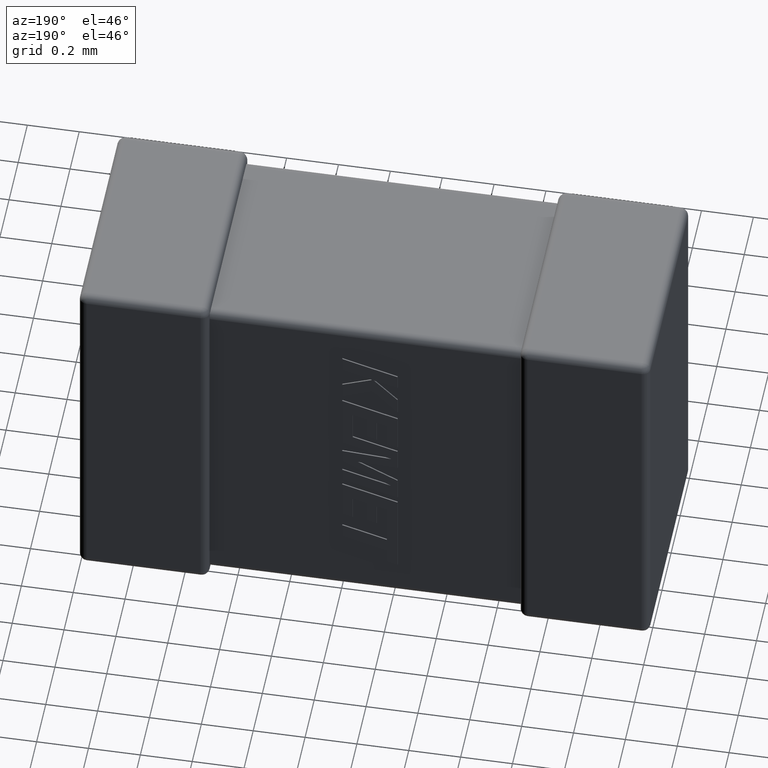
[diagram: clean part render]
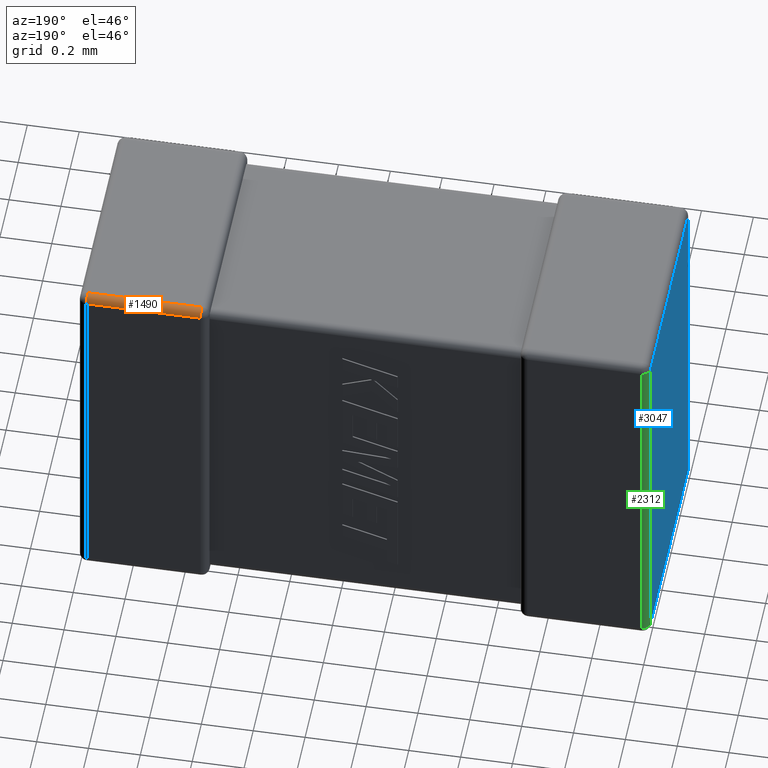
[diagram: same view with three faces highlighted in distinct colors, each labeled with its STEP entity id]
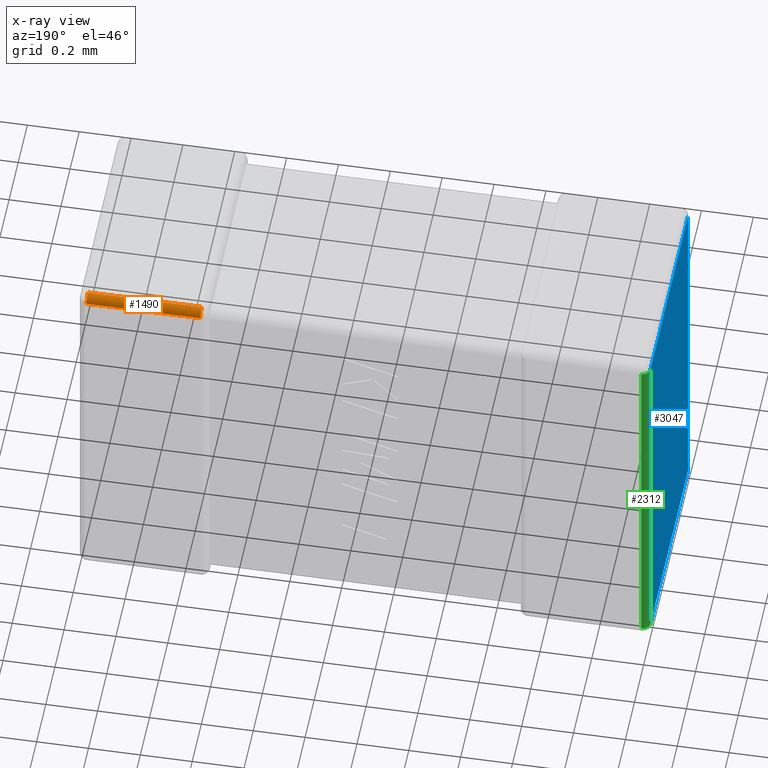
[diagram: x-ray of the same camera — body ghosted, the three highlighted faces saturated]
A machine part, auxiliary view with three faces highlighted in distinct colors.
The next image is the same camera in x-ray (body ghosted, the three faces saturated) — at least one of them is partly hidden behind the body in this view.
Their STEP definitions:

[orange] entity #1490 — the highlighted cylindrical surface (edge-blend (fillet) strip) has radius 0.0302 mm, axis along (-1, 0, 0).
#58 = VERTEX_POINT ( 'NONE', #3063 ) ;
#245 = DIRECTION ( 'NONE',  ( 1.000000000000000000, -0.000000000000000000, -0.000000000000000000 ) ) ;
#627 = CARTESIAN_POINT ( 'NONE',  ( 2.200000000000000178, 0.8498400000000000398, 0.000000000000000000 ) ) ;
#762 = ORIENTED_EDGE ( 'NONE', *, *, #4422, .T. ) ;
#837 = VECTOR ( 'NONE', #245, 1000.000000000000000 ) ;
#1108 = CARTESIAN_POINT ( 'NONE',  ( 2.169840000000000213, 0.8498400000000000398, 0.000000000000000000 ) ) ;
#1327 = CIRCLE ( 'NONE', #4110, 0.03015999999999999931 ) ;
#1490 = ADVANCED_FACE ( 'NONE', ( #2479 ), #2882, .T. ) ;
#1649 = LINE ( 'NONE', #2428, #837 ) ;
#1656 = CARTESIAN_POINT ( 'NONE',  ( 2.169840000000000213, 0.8800000000000000044, -0.03015999999999999931 ) ) ;
#1748 = CARTESIAN_POINT ( 'NONE',  ( 1.730160000000000142, 0.8498400000000000398, 0.000000000000000000 ) ) ;
#1812 = ORIENTED_EDGE ( 'NONE', *, *, #2234, .F. ) ;
#1948 = AXIS2_PLACEMENT_3D ( 'NONE', #2099, #2476, #2502 ) ;
#2089 = ORIENTED_EDGE ( 'NONE', *, *, #4351, .F. ) ;
#2099 = CARTESIAN_POINT ( 'NONE',  ( 2.169840000000000213, 0.8498400000000000398, -0.03015999999999999931 ) ) ;
#2101 = CARTESIAN_POINT ( 'NONE',  ( 1.730160000000000142, 0.8498400000000000398, -0.03015999999999999931 ) ) ;
#2149 = DIRECTION ( 'NONE',  ( 0.000000000000000000, 0.000000000000000000, 1.000000000000000000 ) ) ;
#2234 = EDGE_CURVE ( 'NONE', #3183, #58, #1327, .T. ) ;
#2428 = CARTESIAN_POINT ( 'NONE',  ( 2.200000000000000178, 0.8800000000000000044, -0.03015999999999999931 ) ) ;
#2468 = EDGE_CURVE ( 'NONE', #2908, #3183, #3859, .T. ) ;
#2476 = DIRECTION ( 'NONE',  ( -1.000000000000000000, -0.000000000000000000, -0.000000000000000000 ) ) ;
#2479 = FACE_OUTER_BOUND ( 'NONE', #4102, .T. ) ;
#2502 = DIRECTION ( 'NONE',  ( 0.000000000000000000, 0.000000000000000000, -1.000000000000000000 ) ) ;
#2551 = CIRCLE ( 'NONE', #1948, 0.03015999999999999931 ) ;
#2835 = DIRECTION ( 'NONE',  ( -1.000000000000000000, 0.000000000000000000, 0.000000000000000000 ) ) ;
#2882 = CYLINDRICAL_SURFACE ( 'NONE', #4224, 0.03015999999999999931 ) ;
#2908 = VERTEX_POINT ( 'NONE', #1108 ) ;
#2961 = VECTOR ( 'NONE', #4158, 1000.000000000000000 ) ;
#3045 = VERTEX_POINT ( 'NONE', #1656 ) ;
#3063 = CARTESIAN_POINT ( 'NONE',  ( 1.730160000000000142, 0.8800000000000000044, -0.03015999999999999931 ) ) ;
#3183 = VERTEX_POINT ( 'NONE', #1748 ) ;
#3215 = ORIENTED_EDGE ( 'NONE', *, *, #2468, .F. ) ;
#3285 = CARTESIAN_POINT ( 'NONE',  ( 2.200000000000000178, 0.8498400000000000398, -0.03015999999999999931 ) ) ;
#3371 = DIRECTION ( 'NONE',  ( 0.000000000000000000, 0.000000000000000000, 1.000000000000000000 ) ) ;
#3686 = DIRECTION ( 'NONE',  ( -1.000000000000000000, 0.000000000000000000, 0.000000000000000000 ) ) ;
#3859 = LINE ( 'NONE', #627, #2961 ) ;
#4102 = EDGE_LOOP ( 'NONE', ( #762, #2089, #1812, #3215 ) ) ;
#4110 = AXIS2_PLACEMENT_3D ( 'NONE', #2101, #2835, #2149 ) ;
#4158 = DIRECTION ( 'NONE',  ( -1.000000000000000000, 0.000000000000000000, 0.000000000000000000 ) ) ;
#4224 = AXIS2_PLACEMENT_3D ( 'NONE', #3285, #3686, #3371 ) ;
#4351 = EDGE_CURVE ( 'NONE', #58, #3045, #1649, .T. ) ;
#4422 = EDGE_CURVE ( 'NONE', #2908, #3045, #2551, .T. ) ;

[blue] entity #3047 — the highlighted planar face has unit normal (-1, 0, 0).
#124 = ORIENTED_EDGE ( 'NONE', *, *, #288, .T. ) ;
#258 = CARTESIAN_POINT ( 'NONE',  ( 0.000000000000000000, 0.03015999999999999931, -1.419839999999999991 ) ) ;
#288 = EDGE_CURVE ( 'NONE', #407, #4145, #1319, .T. ) ;
#389 = VECTOR ( 'NONE', #4159, 1000.000000000000000 ) ;
#400 = DIRECTION ( 'NONE',  ( 0.000000000000000000, 0.000000000000000000, 1.000000000000000000 ) ) ;
#407 = VERTEX_POINT ( 'NONE', #258 ) ;
#463 = EDGE_CURVE ( 'NONE', #2157, #407, #1888, .T. ) ;
#603 = CARTESIAN_POINT ( 'NONE',  ( 0.000000000000000000, 0.8498400000000000398, -1.449999999999999956 ) ) ;
#689 = CARTESIAN_POINT ( 'NONE',  ( 0.000000000000000000, 0.8800000000000000044, -0.03015999999999999931 ) ) ;
#755 = DIRECTION ( 'NONE',  ( -1.000000000000000000, 0.000000000000000000, 0.000000000000000000 ) ) ;
#840 = CARTESIAN_POINT ( 'NONE',  ( 0.000000000000000000, 0.000000000000000000, -1.419839999999999991 ) ) ;
#951 = LINE ( 'NONE', #603, #389 ) ;
#984 = LINE ( 'NONE', #689, #2970 ) ;
#1264 = AXIS2_PLACEMENT_3D ( 'NONE', #2909, #755, #400 ) ;
#1319 = LINE ( 'NONE', #1662, #2341 ) ;
#1629 = EDGE_CURVE ( 'NONE', #1700, #2157, #951, .T. ) ;
#1662 = CARTESIAN_POINT ( 'NONE',  ( 0.000000000000000000, 0.03015999999999999931, 0.000000000000000000 ) ) ;
#1700 = VERTEX_POINT ( 'NONE', #3486 ) ;
#1743 = CARTESIAN_POINT ( 'NONE',  ( 0.000000000000000000, 0.8498400000000000398, -1.419839999999999991 ) ) ;
#1801 = ORIENTED_EDGE ( 'NONE', *, *, #463, .T. ) ;
#1844 = ORIENTED_EDGE ( 'NONE', *, *, #1982, .T. ) ;
#1888 = LINE ( 'NONE', #840, #2569 ) ;
#1982 = EDGE_CURVE ( 'NONE', #4145, #1700, #984, .T. ) ;
#2157 = VERTEX_POINT ( 'NONE', #1743 ) ;
#2341 = VECTOR ( 'NONE', #4045, 1000.000000000000000 ) ;
#2379 = FACE_OUTER_BOUND ( 'NONE', #4676, .T. ) ;
#2414 = DIRECTION ( 'NONE',  ( -0.000000000000000000, 1.000000000000000000, -0.000000000000000000 ) ) ;
#2569 = VECTOR ( 'NONE', #3334, 1000.000000000000000 ) ;
#2817 = CARTESIAN_POINT ( 'NONE',  ( 0.000000000000000000, 0.03015999999999999931, -0.03015999999999999931 ) ) ;
#2909 = CARTESIAN_POINT ( 'NONE',  ( 0.000000000000000000, 0.000000000000000000, 0.000000000000000000 ) ) ;
#2970 = VECTOR ( 'NONE', #2414, 1000.000000000000000 ) ;
#3047 = ADVANCED_FACE ( 'NONE', ( #2379 ), #3397, .T. ) ;
#3334 = DIRECTION ( 'NONE',  ( -0.000000000000000000, -1.000000000000000000, -0.000000000000000000 ) ) ;
#3397 = PLANE ( 'NONE',  #1264 ) ;
#3486 = CARTESIAN_POINT ( 'NONE',  ( 0.000000000000000000, 0.8498400000000000398, -0.03015999999999999931 ) ) ;
#4045 = DIRECTION ( 'NONE',  ( -0.000000000000000000, -0.000000000000000000, 1.000000000000000000 ) ) ;
#4145 = VERTEX_POINT ( 'NONE', #2817 ) ;
#4159 = DIRECTION ( 'NONE',  ( -0.000000000000000000, 0.000000000000000000, -1.000000000000000000 ) ) ;
#4665 = ORIENTED_EDGE ( 'NONE', *, *, #1629, .T. ) ;
#4676 = EDGE_LOOP ( 'NONE', ( #1801, #124, #1844, #4665 ) ) ;

[green] entity #2312 — the highlighted cylindrical surface (edge-blend (fillet) strip) has radius 0.0302 mm, axis along (0, 0, -1).
#32 = CARTESIAN_POINT ( 'NONE',  ( 0.03015999999999999584, 0.8800000000000000044, -0.03015999999999999931 ) ) ;
#140 = CYLINDRICAL_SURFACE ( 'NONE', #1612, 0.03015999999999999931 ) ;
#344 = CARTESIAN_POINT ( 'NONE',  ( 0.03015999999999999584, 0.8800000000000000044, 0.000000000000000000 ) ) ;
#354 = CIRCLE ( 'NONE', #952, 0.03015999999999999584 ) ;
#389 = VECTOR ( 'NONE', #4159, 1000.000000000000000 ) ;
#603 = CARTESIAN_POINT ( 'NONE',  ( 0.000000000000000000, 0.8498400000000000398, -1.449999999999999956 ) ) ;
#664 = DIRECTION ( 'NONE',  ( 1.000000000000000000, 0.000000000000000000, 0.000000000000000000 ) ) ;
#951 = LINE ( 'NONE', #603, #389 ) ;
#952 = AXIS2_PLACEMENT_3D ( 'NONE', #2437, #1705, #664 ) ;
#967 = AXIS2_PLACEMENT_3D ( 'NONE', #1042, #2471, #4609 ) ;
#1042 = CARTESIAN_POINT ( 'NONE',  ( 0.03015999999999999931, 0.8498400000000000398, -1.419839999999999991 ) ) ;
#1162 = DIRECTION ( 'NONE',  ( 0.000000000000000000, 0.000000000000000000, -1.000000000000000000 ) ) ;
#1358 = EDGE_CURVE ( 'NONE', #1627, #4436, #1722, .T. ) ;
#1461 = ORIENTED_EDGE ( 'NONE', *, *, #3337, .F. ) ;
#1612 = AXIS2_PLACEMENT_3D ( 'NONE', #4398, #1162, #2589 ) ;
#1627 = VERTEX_POINT ( 'NONE', #2425 ) ;
#1629 = EDGE_CURVE ( 'NONE', #1700, #2157, #951, .T. ) ;
#1700 = VERTEX_POINT ( 'NONE', #3486 ) ;
#1705 = DIRECTION ( 'NONE',  ( 0.000000000000000000, -0.000000000000000000, 1.000000000000000000 ) ) ;
#1722 = LINE ( 'NONE', #344, #1871 ) ;
#1743 = CARTESIAN_POINT ( 'NONE',  ( 0.000000000000000000, 0.8498400000000000398, -1.419839999999999991 ) ) ;
#1871 = VECTOR ( 'NONE', #4619, 1000.000000000000000 ) ;
#2015 = CIRCLE ( 'NONE', #967, 0.03015999999999999931 ) ;
#2033 = EDGE_CURVE ( 'NONE', #4436, #1700, #354, .T. ) ;
#2157 = VERTEX_POINT ( 'NONE', #1743 ) ;
#2217 = FACE_OUTER_BOUND ( 'NONE', #3923, .T. ) ;
#2312 = ADVANCED_FACE ( 'NONE', ( #2217 ), #140, .T. ) ;
#2425 = CARTESIAN_POINT ( 'NONE',  ( 0.03015999999999999584, 0.8800000000000000044, -1.419839999999999991 ) ) ;
#2437 = CARTESIAN_POINT ( 'NONE',  ( 0.03015999999999999584, 0.8498400000000000398, -0.03015999999999999931 ) ) ;
#2471 = DIRECTION ( 'NONE',  ( 0.000000000000000000, 0.000000000000000000, -1.000000000000000000 ) ) ;
#2589 = DIRECTION ( 'NONE',  ( -1.000000000000000000, 0.000000000000000000, 0.000000000000000000 ) ) ;
#2621 = ORIENTED_EDGE ( 'NONE', *, *, #1629, .F. ) ;
#2865 = ORIENTED_EDGE ( 'NONE', *, *, #2033, .F. ) ;
#3168 = ORIENTED_EDGE ( 'NONE', *, *, #1358, .F. ) ;
#3337 = EDGE_CURVE ( 'NONE', #2157, #1627, #2015, .T. ) ;
#3486 = CARTESIAN_POINT ( 'NONE',  ( 0.000000000000000000, 0.8498400000000000398, -0.03015999999999999931 ) ) ;
#3923 = EDGE_LOOP ( 'NONE', ( #1461, #2621, #2865, #3168 ) ) ;
#4159 = DIRECTION ( 'NONE',  ( -0.000000000000000000, 0.000000000000000000, -1.000000000000000000 ) ) ;
#4398 = CARTESIAN_POINT ( 'NONE',  ( 0.03015999999999999584, 0.8498400000000000398, 0.000000000000000000 ) ) ;
#4436 = VERTEX_POINT ( 'NONE', #32 ) ;
#4609 = DIRECTION ( 'NONE',  ( -1.000000000000000000, 0.000000000000000000, 0.000000000000000000 ) ) ;
#4619 = DIRECTION ( 'NONE',  ( 0.000000000000000000, 0.000000000000000000, 1.000000000000000000 ) ) ;